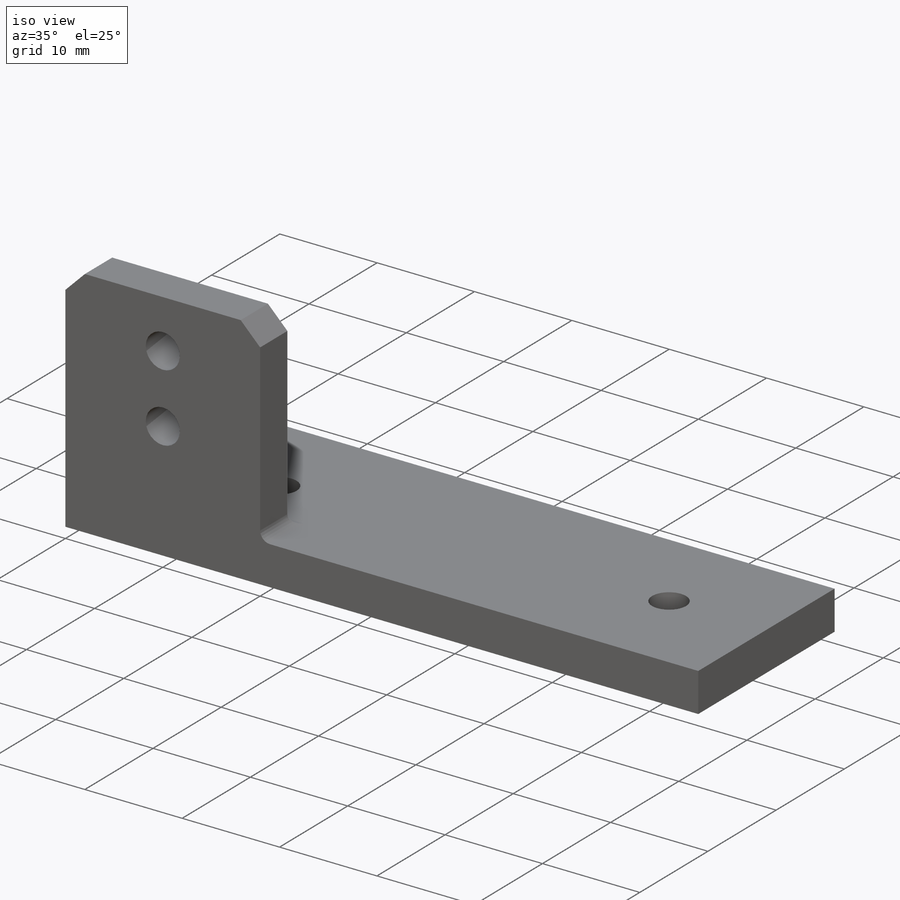
[diagram: iso view]
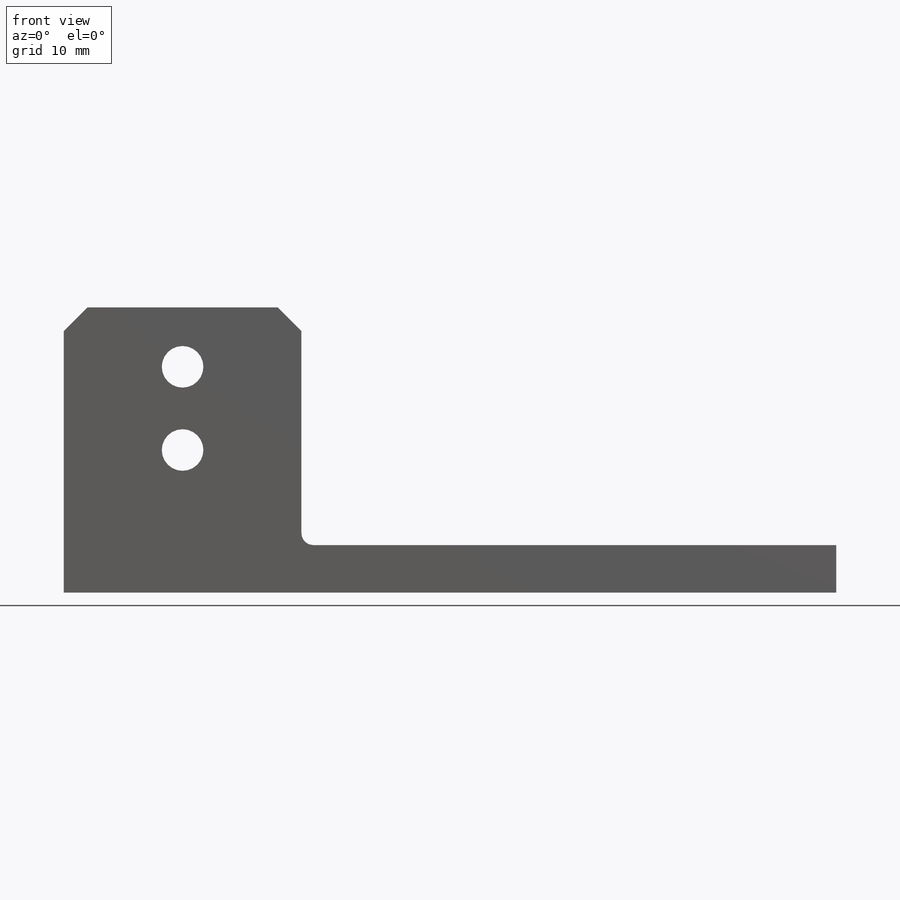
[diagram: front view]
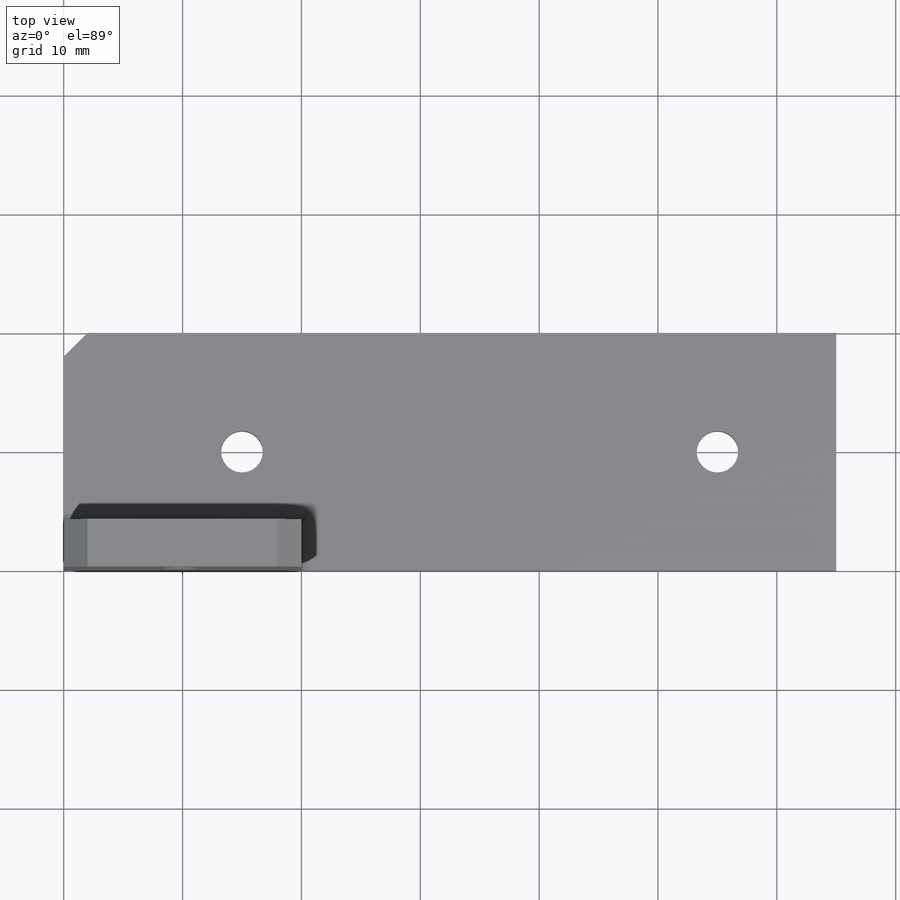
[diagram: top view]
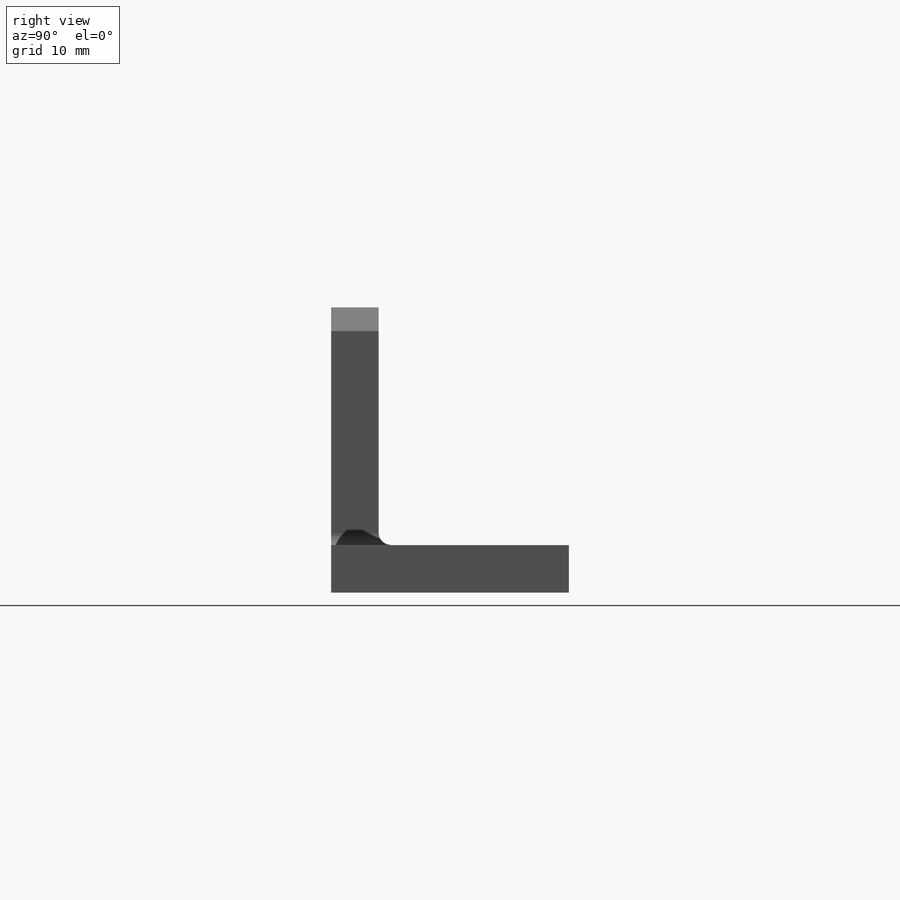
[diagram: right view]
SOLIDWORKS PART (.sldprt)
format: sldprt  version: not decoded by parser v0  size: 184,320 bytes
history: native  units: mm
features: sketch x4, plane x3, extrude x2, cut_extrude x2, fillet x2, chamfer x2, material x1 (+9 scaffold rows collapsed)
feature tree (25):
  scaffold x9  (default folders/planes/origin — collapsed)
  material  "Materiale <non specificato>"
  plane  "Piano frontale"
  plane  "Piano superiore"
  plane  "Piano destro"
  sketch  "Schizzo1"  dims[D1=4.0mm D2=65.0mm]
  extrude  "Estrusione-Estrusione1"  Depth=20mm
  sketch  "Schizzo2"  dims[D1=4.0mm D2=20.0mm]
  extrude  "Estrusione-Estrusione2"  Depth=20mm
  sketch  "Schizzo6"  dims[D1=3.5mm D2=10.0mm D3=40.0mm]
  cut_extrude  "Taglio-Estrusione1"  [1 undecoded]
  sketch  "Schizzo7"  dims[D1=3.5mm D2=5.0mm D3=7.0mm]
  cut_extrude  "Taglio-Estrusione2"  [1 undecoded]
  fillet  "Raccordo1"  Radius=1mm
  fillet  "Raccordo2"  Radius=1mm
  chamfer  "Smusso1"  Distance=2mm Angle=45deg
  chamfer  "Smusso3"  Distance=2mm Angle=45deg
decode coverage: 10 of 12 modeling features carry decoded parameters
note: 2 parameter values undecoded
note: suppression state not decoded; provenance and decode notes live in map.json
